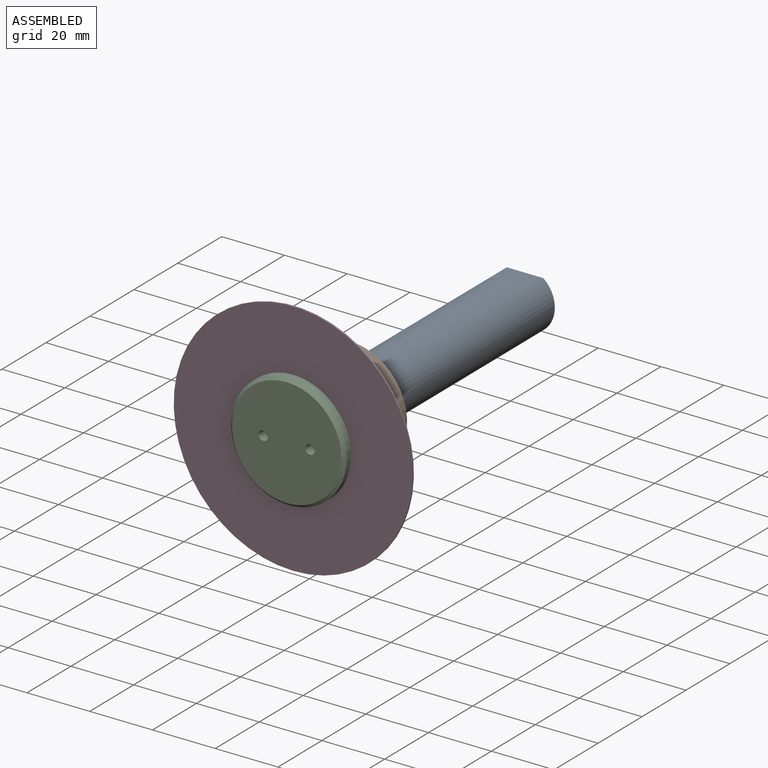
[diagram: assembled view]
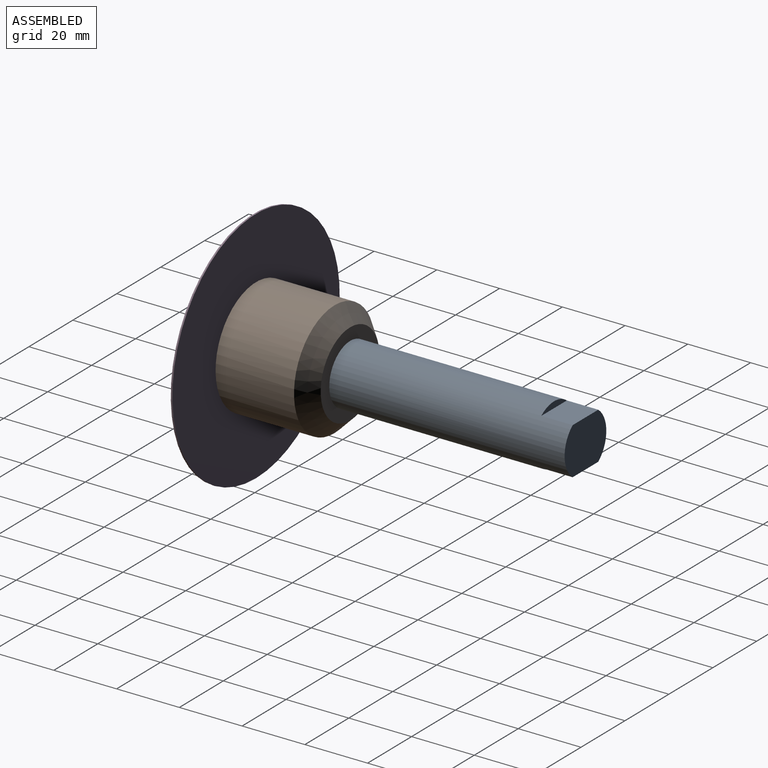
[diagram: assembled view, second angle]
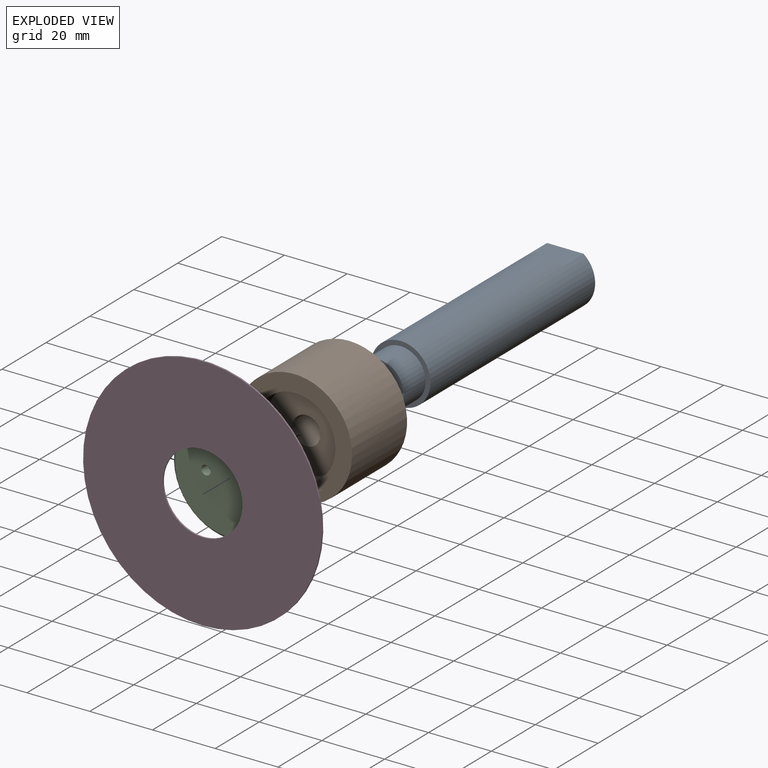
[diagram: exploded view]
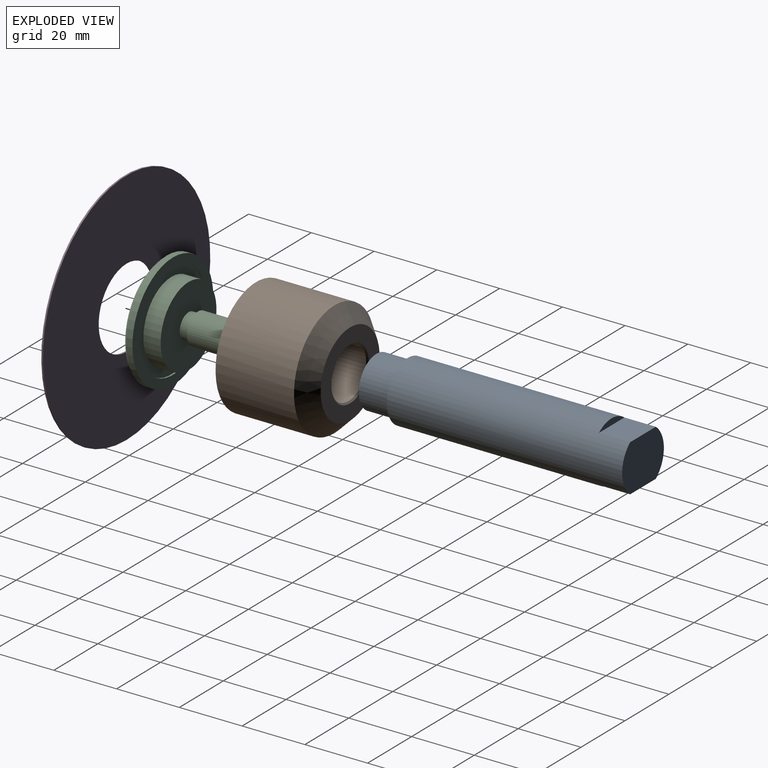
[diagram: exploded view, second angle]
ASSEMBLY  parts=4 mates=4
PART A: 9 faces, bbox 19x85x19 mm
  f0: plane 19x15mm, normal (0,1,0), area 251.7mm2, adj f1,f5,f7
  f1: cylinder r=9.5mm len=75mm, axis (0,-1,0), area 4225.6mm2, adj f0,f3,f5,f6,f7,f8
  f2: cylinder r=8mm len=16mm, axis (0,1,0), area 502.7mm2, adj f3,f4
  f3: plane 19x19mm, normal (0,-1,0), area 82.5mm2, adj f1,f2
  f4: plane 16x16mm, normal (0,-1,0), area 201.1mm2, adj f2
  f5: plane 11.66x10mm, normal (0,0,-1), area 116.6mm2, adj f0,f1,f6
  f6: plane 11.66x2mm, normal (0,1,0), area 15.9mm2, adj f1,f5
  f7: plane 11.66x10mm, normal (0,0,1), area 116.6mm2, adj f0,f1,f8
  f8: plane 11.66x2mm, normal (0,1,0), area 15.9mm2, adj f1,f7
PART B: 14 faces, bbox 36.8x30x36.8 mm
  f0: cylinder r=5.46mm len=10.92mm, axis (0,-1,0), area 51.4mm2, adj f3,f11
  f1: plane 25.4x25.4mm, normal (0,-1,0), area 444.3mm2, adj f2,f9
  f2: cylinder r=4.46mm len=13mm, axis (0,-1,0), area 364.2mm2, adj f1,f3
  f3: plane 10.92x10.92mm, normal (0,1,0), area 31.2mm2, adj f0,f2
  f4: plane 26.83x26.83mm, normal (0,1,0), area 338.4mm2, adj f10,f13
  f5: cylinder r=18.41mm len=36.83mm, axis (0,-1,0), area 2892.6mm2, adj f6,f10
  f6: plane 36.83x36.83mm, normal (0,-1,0), area 318.8mm2, adj f5,f7
  f7: cylinder r=15.41mm len=30.83mm, axis (0,-1,0), area 49.2mm2, adj f6,f8
  f8: plane 30.83x30.83mm, normal (0,-1,0), area 239.8mm2, adj f7,f9
  f9: cylinder r=12.7mm len=25.4mm, axis (0,-1,0), area 398.3mm2, adj f1,f8
  f10: cone r=18.41mm half-angle=45deg, axis (0,-1,0), area 707.1mm2, adj f4,f5
  f11: plane 16x16mm, normal (0,1,0), area 107.5mm2, adj f0,f12
  f12: cylinder r=8mm len=16mm, axis (0,1,0), area 477.5mm2, adj f11,f13
  f13: cone r=8mm half-angle=45deg, axis (0,1,0), area 36.7mm2, adj f4,f12
PART C: 17 faces, bbox 36.8x23x36.8 mm
  f0: plane 34.83x34.83mm, normal (0,-1,0), area 938.7mm2, adj f11,f13,f15
  f1: plane 25.4x25.4mm, normal (0,1,0), area 456.4mm2, adj f2,f10
  f2: cylinder r=12.7mm len=25.4mm, axis (0,1,0), area 439.5mm2, adj f1,f3
  f3: plane 30.83x30.83mm, normal (0,1,0), area 239.8mm2, adj f2,f4
  f4: cylinder r=15.41mm len=30.83mm, axis (0,1,0), area 49.2mm2, adj f3,f5
  f5: plane 36.83x36.83mm, normal (0,1,0), area 318.8mm2, adj f4,f6
  f6: cylinder r=18.41mm len=36.83mm, axis (0,1,0), area 231.4mm2, adj f5,f11
  f7: plane 7x7mm, normal (0,1,0), area 38.5mm2, adj f12
  f8: cylinder r=5mm len=10.5mm, axis (0,1,0), area 329.9mm2, adj f9,f12
  f9: plane 10x10mm, normal (0,-1,0), area 28.3mm2, adj f8,f10
  f10: cylinder r=4mm len=8mm, axis (0,1,0), area 75.4mm2, adj f1,f9
  f11: cone r=18.41mm half-angle=45deg, axis (0,1,0), area 159.2mm2, adj f0,f6
  f12: cone r=3.5mm half-angle=45deg, axis (0,-1,0), area 56.6mm2, adj f7,f8
  f13: cylinder r=1.5mm len=3mm, axis (0,-1,0), area 28.3mm2, adj f0,f14
  f14: plane 3x3mm, normal (0,-1,0), area 7.1mm2, adj f13
  f15: cylinder r=1.5mm len=3mm, axis (0,-1,0), area 28.3mm2, adj f0,f16
  f16: plane 3x3mm, normal (0,-1,0), area 7.1mm2, adj f15
PART D: 4 faces, bbox 76.2x0.5x76.2 mm
  f0: cylinder r=12.7mm len=25.4mm, axis (0,1,0), area 39.9mm2, adj f2,f3
  f1: cylinder r=38.1mm len=76.2mm, axis (0,1,0), area 119.7mm2, adj f2,f3
  f2: plane 76.2x76.2mm, normal (0,-1,0), area 4053.7mm2, adj f0,f1
  f3: plane 76.2x76.2mm, normal (0,1,0), area 4053.7mm2, adj f0,f1
PLACE A t=(-3.41,-4.97,3.06)mm
PLACE B t=(-3.41,-4.97,3.06)mm
PLACE C t=(-3.41,14.53,3.06)mm
PLACE D t=(-3.41,18.03,3.06)mm
MATE slider C.f2 <-> B.f0  axis (0,1,0) through (-3.41,17.53,3.06)mm
MATE fastened D.f0 <-> C.f2  axis (0,-1,0) through (-3.41,17.53,3.06)mm
MATE planar B.f0 <-> D.f1  axis (0,-1,0) through (-3.41,18.03,3.06)mm
MATE fastened A.f2 <-> B.f0  axis (0,-1,0) through (-3.41,48.03,3.06)mm
